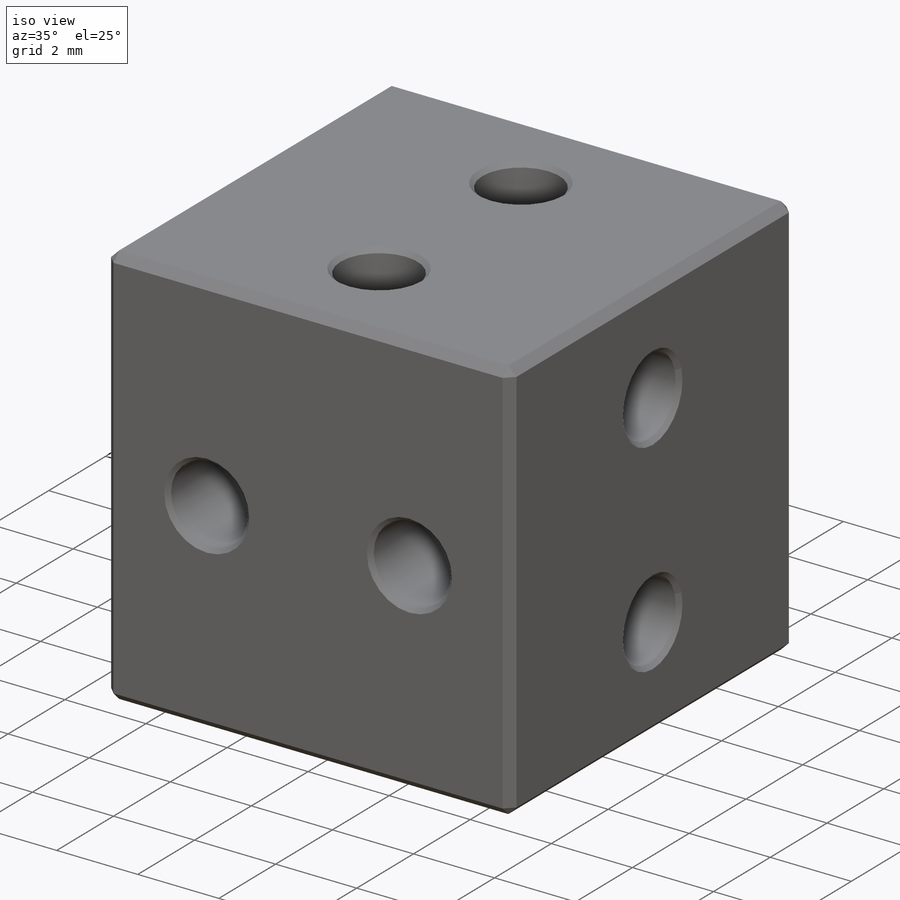
[diagram: iso view]
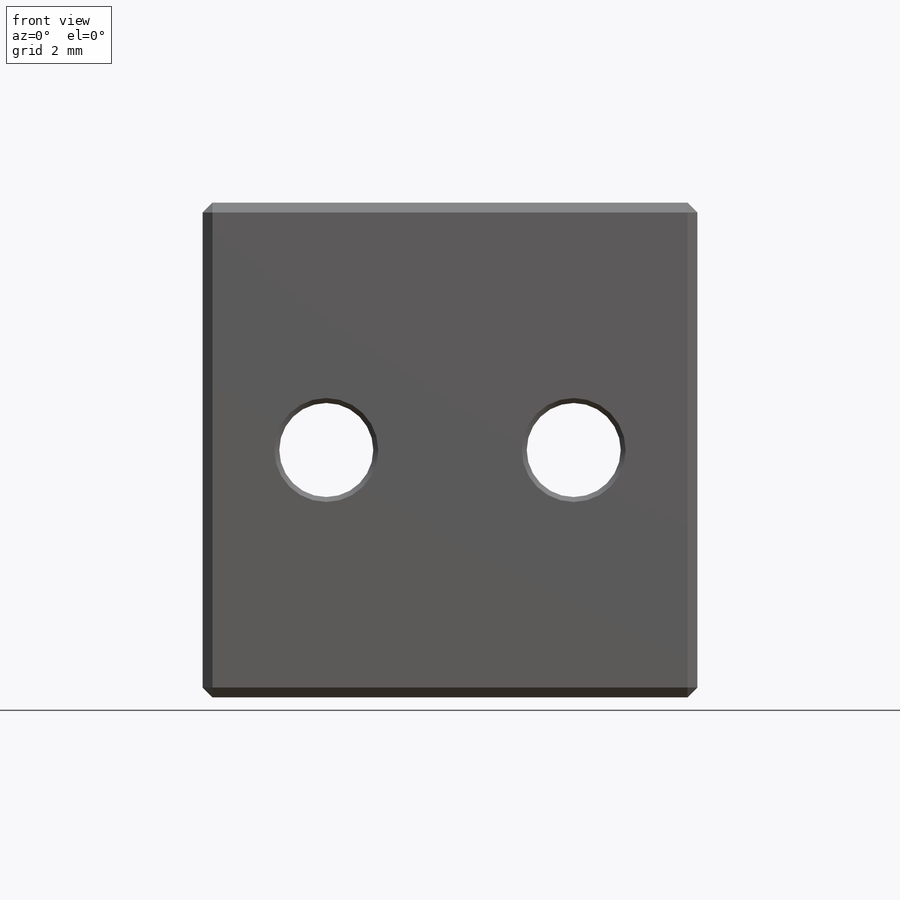
[diagram: front view]
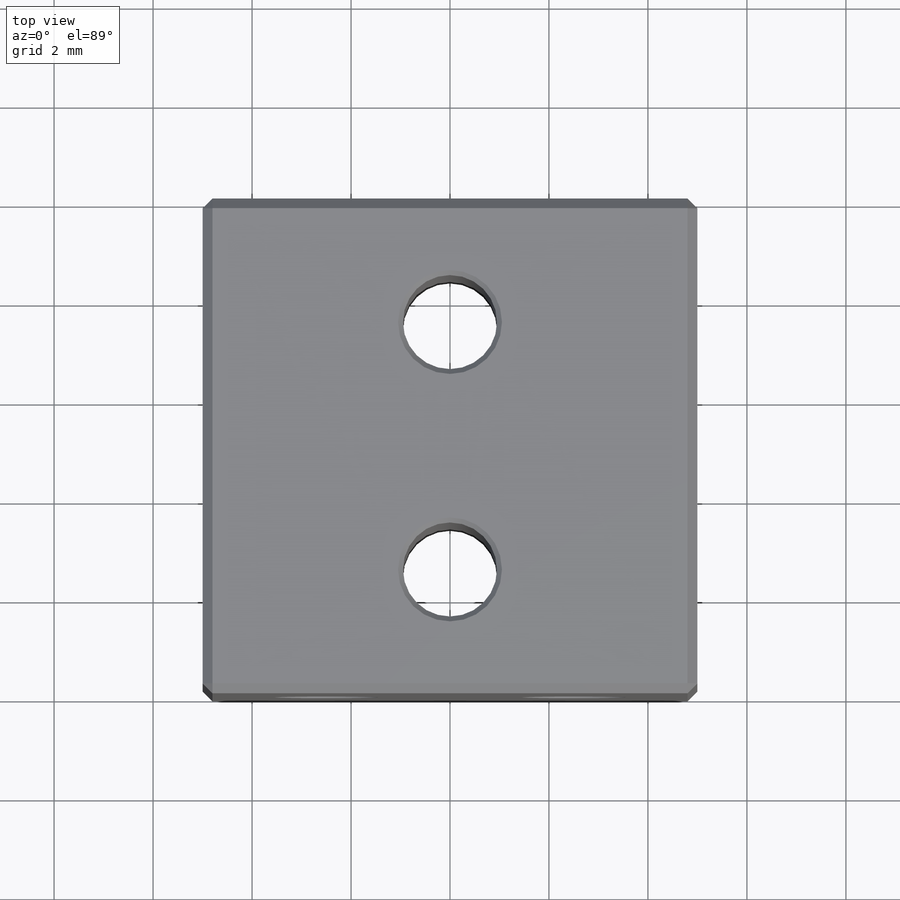
[diagram: top view]
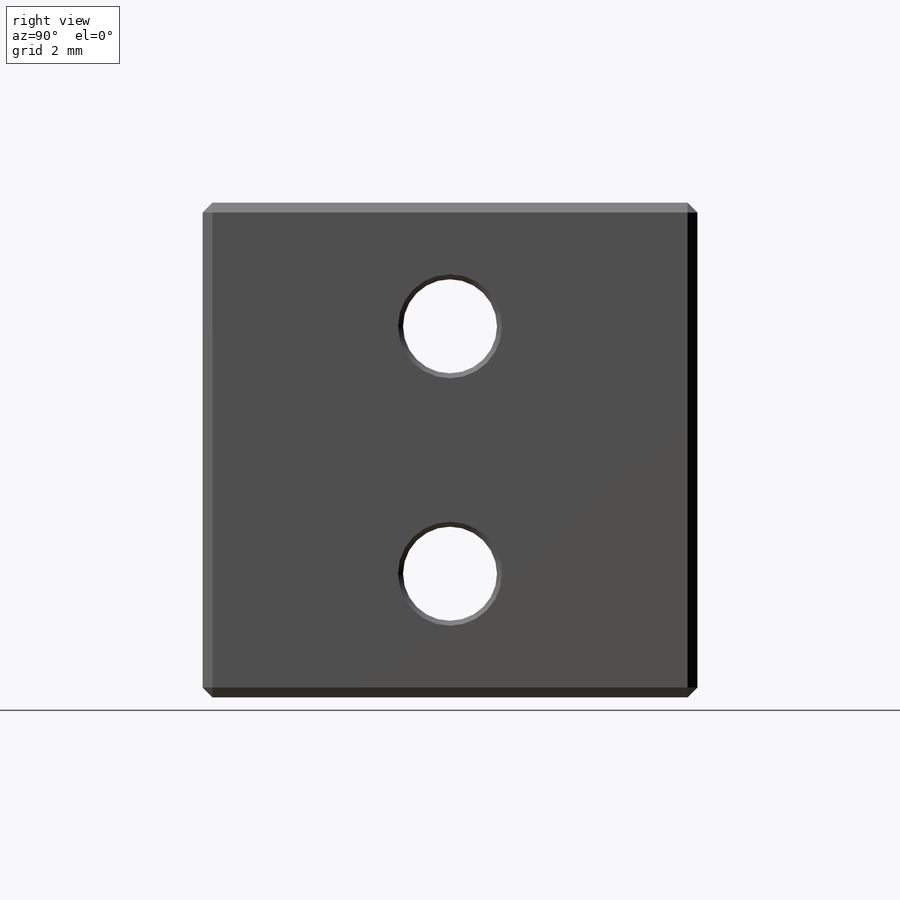
[diagram: right view]
SOLIDWORKS PART (.sldprt)
format: sldprt  version: not decoded by parser v0  size: 266,240 bytes
history: native  units: mm
features: thread x12, sketch x4, cut_extrude x3, chamfer x2, material x1, extrude x1 (+11 scaffold rows collapsed)
feature tree (34):
  scaffold x11  (default folders/planes/origin — collapsed)
  material  "Material <not specified>"
  sketch  "Sketch1"  dims[D1=10.0mm D2=10.0mm]
  extrude  "Boss-Extrude1"  Depth=10mm
  sketch  "Sketch2"  dims[D1=~1.628647mm D2=5.0mm]
  cut_extrude  "Cut-Extrude1"  [1 undecoded]
  thread  "Cosmetic Thread19"  Diameter=2mm  [1 undecoded]
  thread  "Cosmetic Thread20"  Diameter=2mm  [1 undecoded]
  thread  "Cosmetic Thread25"  Diameter=2mm  [1 undecoded]
  thread  "Cosmetic Thread26"  Diameter=2mm  [1 undecoded]
  sketch  "Sketch3"  dims[c1.D3=~2.196205mm c1.D1=5.0mm c1.D2=2.0mm c2.D1=5.0mm]
  cut_extrude  "Cut-Extrude2"  [1 undecoded]
  thread  "Cosmetic Thread15"  Diameter=2mm  [1 undecoded]
  thread  "Cosmetic Thread16"  Diameter=2mm  [1 undecoded]
  thread  "Cosmetic Thread23"  Diameter=2mm  [1 undecoded]
  thread  "Cosmetic Thread24"  Diameter=2mm  [1 undecoded]
  sketch  "Sketch5"  dims[D3=~2.00454mm D1=4.5mm D2=5.0mm]
  cut_extrude  "Cut-Extrude4"  [1 undecoded]
  thread  "Cosmetic Thread17"  Diameter=2mm  [1 undecoded]
  thread  "Cosmetic Thread18"  Diameter=2mm  [1 undecoded]
  thread  "Cosmetic Thread21"  Diameter=2mm  [1 undecoded]
  thread  "Cosmetic Thread22"  Diameter=2mm  [1 undecoded]
  chamfer  "Chamfer1"  Distance=0.2mm
  chamfer  "Chamfer2"  Distance=0.1mm
decode coverage: 19 of 22 modeling features carry decoded parameters
note: ~ marks probable driven/reference dimensions
note: 15 parameter values undecoded
summary: no parameter record found for 3 features
note: suppression state not decoded; provenance and decode notes live in map.json
